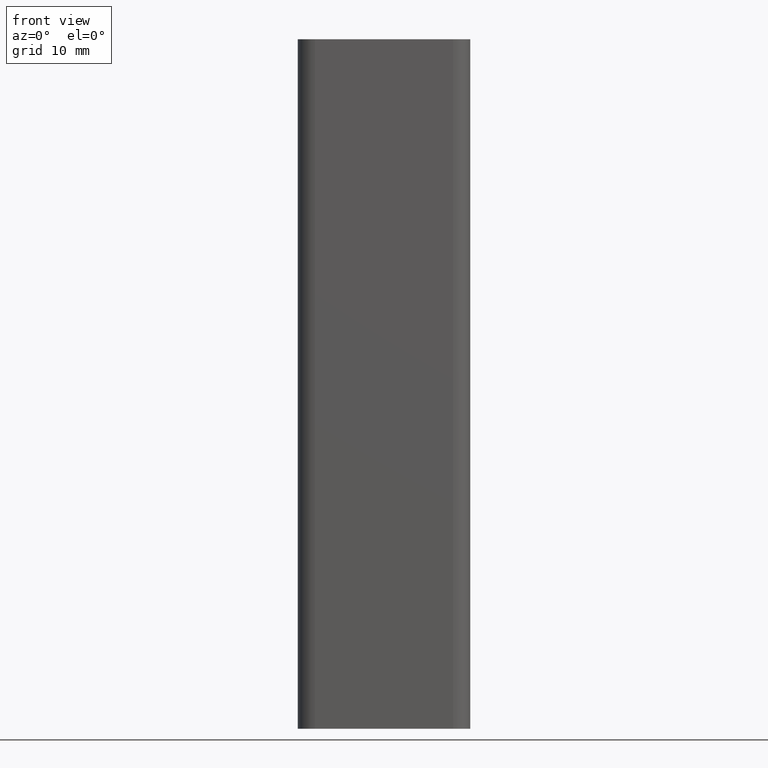
[diagram: clean part render]
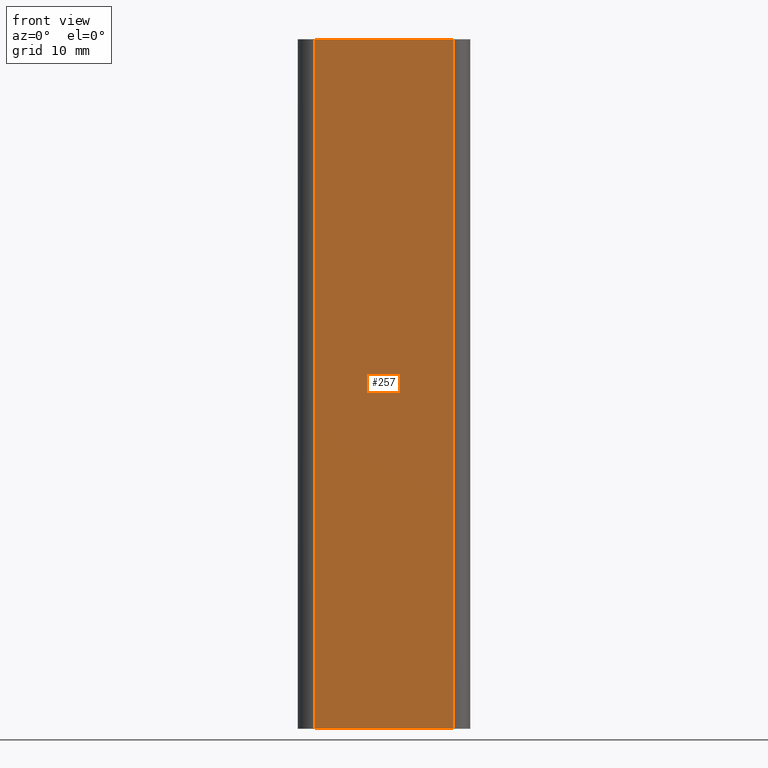
[diagram: same view with one face highlighted and labeled with its STEP entity id]
A machine part, front view. The second image highlights one B-rep face of the part: STEP entity #257.
In plain terms, the highlighted planar face has unit normal (0, -1, 0).
Its self-contained STEP definition (entity closure, byte-faithful):
#7=CARTESIAN_POINT('',(-2.500000000000000,-12.500000000000000,0.0));
#8=VERTEX_POINT('',#7);
#26=CARTESIAN_POINT('',(-2.500000000000000,-12.500000000000000,100.0));
#27=VERTEX_POINT('',#26);
#35=CARTESIAN_POINT('',(-2.500000000000000,-12.500000000000000,0.0));
#36=DIRECTION('',(0.0,0.0,1.0));
#37=VECTOR('',#36,100.0);
#38=LINE('',#35,#37);
#39=EDGE_CURVE('',#8,#27,#38,.T.);
#208=CARTESIAN_POINT('',(-22.500000000000000,-12.500000000000000,0.0));
#209=VERTEX_POINT('',#208);
#217=CARTESIAN_POINT('',(-22.500000000000000,-12.500000000000000,100.0));
#218=VERTEX_POINT('',#217);
#219=CARTESIAN_POINT('',(-22.500000000000000,-12.500000000000000,0.0));
#220=DIRECTION('',(0.0,0.0,1.0));
#221=VECTOR('',#220,100.0);
#222=LINE('',#219,#221);
#223=EDGE_CURVE('',#209,#218,#222,.T.);
#236=CARTESIAN_POINT('',(-22.500000000000000,-12.500000000000000,0.0));
#237=DIRECTION('',(0.0,-1.0,0.0));
#238=DIRECTION('',(1.0,0.0,0.0));
#239=AXIS2_PLACEMENT_3D('',#236,#237,#238);
#240=PLANE('',#239);
#241=CARTESIAN_POINT('',(-22.500000000000000,-12.500000000000000,0.0));
#242=DIRECTION('',(1.0,0.0,0.0));
#243=VECTOR('',#242,20.0);
#244=LINE('',#241,#243);
#245=EDGE_CURVE('',#209,#8,#244,.T.);
#246=ORIENTED_EDGE('',*,*,#245,.T.);
#247=ORIENTED_EDGE('',*,*,#39,.T.);
#248=CARTESIAN_POINT('',(-22.500000000000000,-12.500000000000000,100.0));
#249=DIRECTION('',(1.0,0.0,0.0));
#250=VECTOR('',#249,20.0);
#251=LINE('',#248,#250);
#252=EDGE_CURVE('',#218,#27,#251,.T.);
#253=ORIENTED_EDGE('',*,*,#252,.F.);
#254=ORIENTED_EDGE('',*,*,#223,.F.);
#255=EDGE_LOOP('',(#246,#247,#253,#254));
#256=FACE_OUTER_BOUND('',#255,.T.);
#257=ADVANCED_FACE('',(#256),#240,.T.);